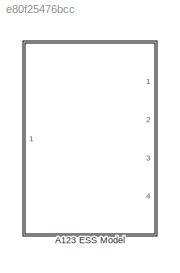
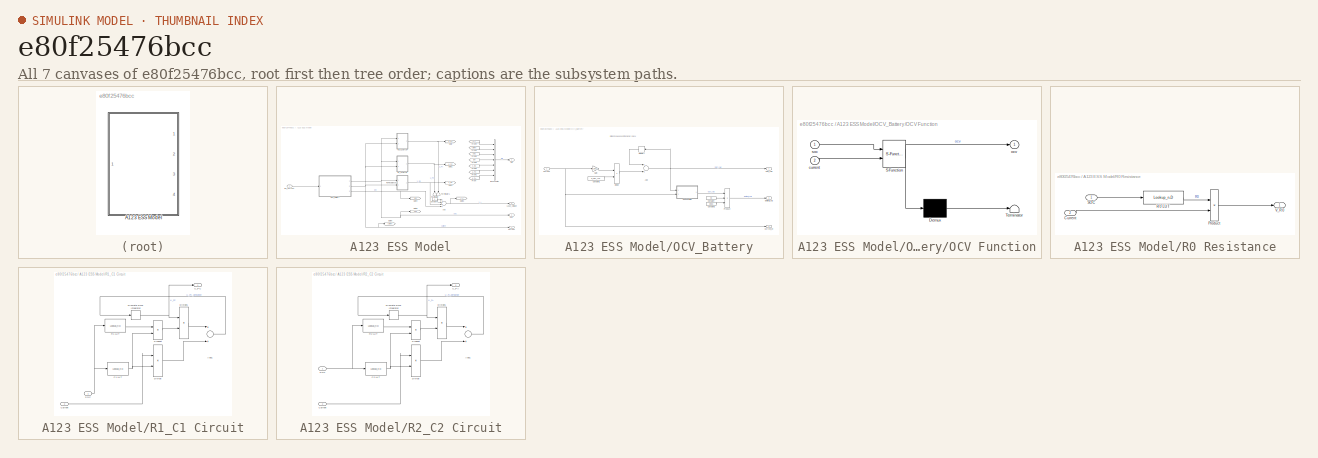
[diagram: thumbnail index - all 7 canvases of the model, root first then tree order]
MODEL slx_e80f25476bcc
KIND library
CONFIG AbsTol = auto
CONFIG EnableMultiTasking = off
CONFIG FixedStep = auto
CONFIG MaxStep = auto
CONFIG MinStep = auto
CONFIG RelTol = 1e-3
CONFIG SampleTimeConstraint = Unconstrained
CONFIG Solver = VariableStepAuto
CONFIG SolverName = VariableStepAuto
CONFIG StartTime = 0.0
CONFIG StopTime = 10.0
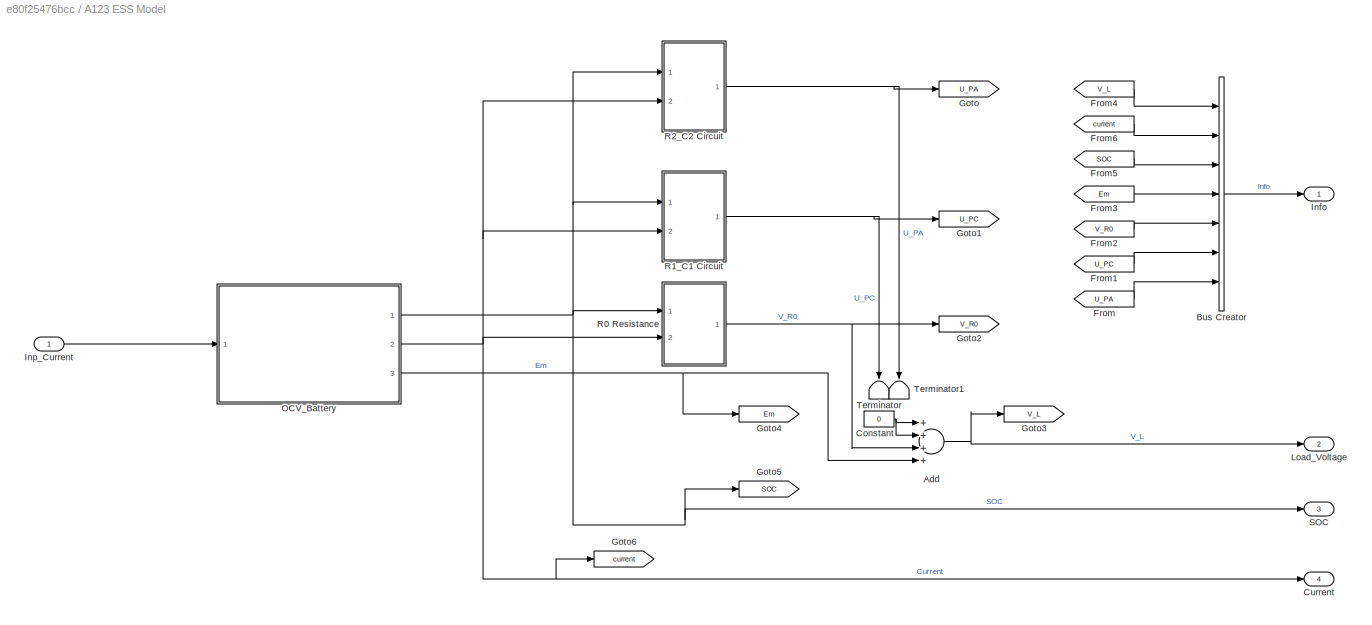
BLOCK [SubSystem] A123 ESS Model
  Ports = [1, 4]
  RequestExecContextInheritance = off
BLOCK [Sum] A123 ESS Model/Add
  InputSameDT = off
  Inputs = ++++
  OutDataTypeStr = Inherit: Inherit via internal rule
  Ports = [4, 1]
  SaturateOnIntegerOverflow = off
BLOCK [BusCreator] A123 ESS Model/Bus Creator
  DisplayOption = bar
  InheritFromInputs = on
  Inputs = 7
  Ports = [7, 1]
BLOCK [Constant] A123 ESS Model/Constant
  Value = 0
BLOCK [Outport] A123 ESS Model/Current
  IconDisplay = Port number
  Port = 4
BLOCK [From] A123 ESS Model/From
  GotoTag = U_PA
BLOCK [From] A123 ESS Model/From1
  GotoTag = U_PC
BLOCK [From] A123 ESS Model/From2
  GotoTag = V_R0
BLOCK [From] A123 ESS Model/From3
  GotoTag = Em
BLOCK [From] A123 ESS Model/From4
  GotoTag = V_L
BLOCK [From] A123 ESS Model/From5
  GotoTag = SOC
BLOCK [From] A123 ESS Model/From6
  GotoTag = current
BLOCK [Goto] A123 ESS Model/Goto
  GotoTag = U_PA
BLOCK [Goto] A123 ESS Model/Goto1
  GotoTag = U_PC
BLOCK [Goto] A123 ESS Model/Goto2
  GotoTag = V_R0
BLOCK [Goto] A123 ESS Model/Goto3
  GotoTag = V_L
BLOCK [Goto] A123 ESS Model/Goto4
  GotoTag = Em
BLOCK [Goto] A123 ESS Model/Goto5
  GotoTag = SOC
BLOCK [Goto] A123 ESS Model/Goto6
  GotoTag = current
BLOCK [Outport] A123 ESS Model/Info
  IconDisplay = Port number
BLOCK [Inport] A123 ESS Model/Inp_Current
  IconDisplay = Port number
BLOCK [Outport] A123 ESS Model/Load_Voltage
  IconDisplay = Port number
  Port = 2
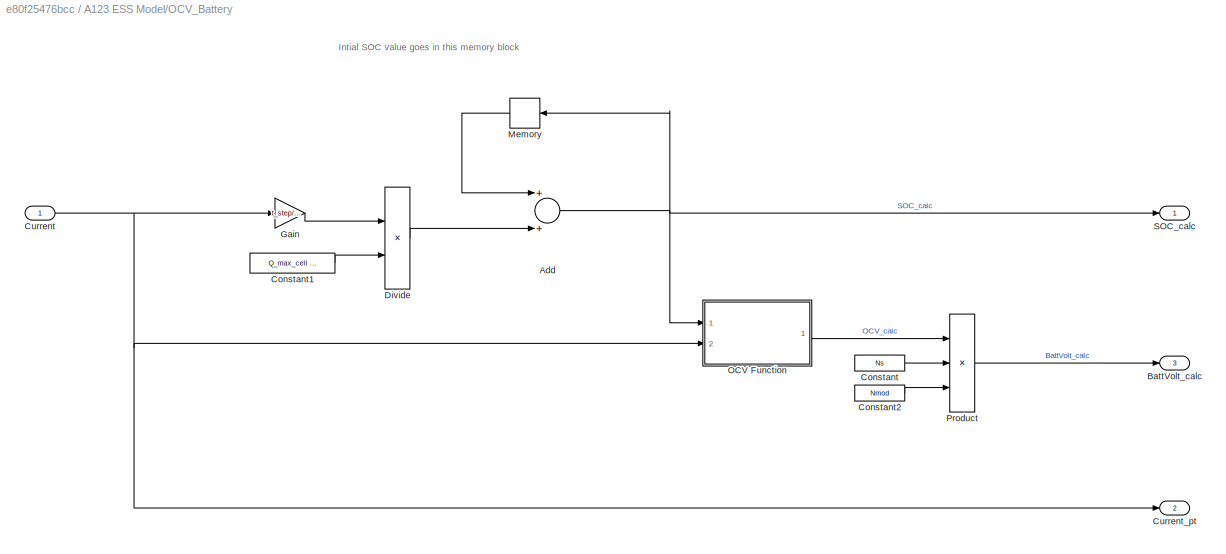
BLOCK [SubSystem] A123 ESS Model/OCV_Battery
  Ports = [1, 3]
  RequestExecContextInheritance = off
BLOCK [Sum] A123 ESS Model/OCV_Battery/Add
  InputSameDT = off
  OutDataTypeStr = Inherit: Inherit via internal rule
  Ports = [2, 1]
  SaturateOnIntegerOverflow = off
BLOCK [Outport] A123 ESS Model/OCV_Battery/BattVolt_calc
  IconDisplay = Port number
  Port = 3
BLOCK [Constant] A123 ESS Model/OCV_Battery/Constant
  Value = Ns
BLOCK [Constant] A123 ESS Model/OCV_Battery/Constant1
  Value = Q_max_cell * Np
BLOCK [Constant] A123 ESS Model/OCV_Battery/Constant2
  Value = Nmod
BLOCK [Inport] A123 ESS Model/OCV_Battery/Current
  IconDisplay = Port number
BLOCK [Outport] A123 ESS Model/OCV_Battery/Current_pt
  IconDisplay = Port number
  Port = 2
BLOCK [Product] A123 ESS Model/OCV_Battery/Divide
  InputSameDT = off
  Inputs = */
  OutDataTypeStr = Inherit: Inherit via internal rule
  Ports = [2, 1]
  RndMeth = Floor
  SaturateOnIntegerOverflow = off
BLOCK [Gain] A123 ESS Model/OCV_Battery/Gain
  Gain = t_step/3600
  OutDataTypeStr = Inherit: Inherit via internal rule
  ParamDataTypeStr = Inherit: Inherit via internal rule
  SaturateOnIntegerOverflow = off
BLOCK [Memory] A123 ESS Model/OCV_Battery/Memory
  InheritSampleTime = on
  InitialCondition = soc_init
  LinearizeAsDelay = on
BLOCK [SubSystem] A123 ESS Model/OCV_Battery/OCV Function
  ErrorFcn = Stateflow.Translate.translate
  PermitHierarchicalResolution = ExplicitOnly
  Ports = [2, 1]
  RequestExecContextInheritance = off
  SFBlockType = MATLAB Function
  TreatAsAtomicUnit = on
BLOCK [Demux] A123 ESS Model/OCV_Battery/OCV Function/ Demux 
  Outputs = 1
  Ports = [1, 1]
BLOCK [S-Function] A123 ESS Model/OCV_Battery/OCV Function/ SFunction 
  EnableBusSupport = off
  FunctionName = sf_sfun
  PortCounts = [2 2]
  Ports = [2, 2]
  SFcnIsStateOwnerBlock = off
  SFunctionDeploymentMode = off
  Tag = Stateflow S-Function lib_ESS 4
BLOCK [Terminator] A123 ESS Model/OCV_Battery/OCV Function/ Terminator 
BLOCK [Inport] A123 ESS Model/OCV_Battery/OCV Function/current
  IconDisplay = Port number
  Port = 2
BLOCK [Outport] A123 ESS Model/OCV_Battery/OCV Function/ocv
  IconDisplay = Port number
BLOCK [Inport] A123 ESS Model/OCV_Battery/OCV Function/soc
  IconDisplay = Port number
BLOCK [Product] A123 ESS Model/OCV_Battery/Product
  InputSameDT = off
  Inputs = 3
  OutDataTypeStr = Inherit: Inherit via internal rule
  Ports = [3, 1]
  RndMeth = Floor
  SaturateOnIntegerOverflow = off
BLOCK [Outport] A123 ESS Model/OCV_Battery/SOC_calc
  IconDisplay = Port number
BLOCK [SubSystem] A123 ESS Model/R0 Resistance
  Ports = [2, 1]
  RequestExecContextInheritance = off
BLOCK [Inport] A123 ESS Model/R0 Resistance/Current
  IconDisplay = Port number
  Port = 2
BLOCK [Product] A123 ESS Model/R0 Resistance/Product
  InputSameDT = off
  OutDataTypeStr = Inherit: Inherit via internal rule
  Ports = [2, 1]
  RndMeth = Floor
  SaturateOnIntegerOverflow = off
BLOCK [Lookup_n-D] A123 ESS Model/R0 Resistance/R0 LUT
  BreakpointsForDimension1 = soc_bpt
  InternalRulePriority = Speed
  NumberOfTableDimensions = 1
  Ports = [1, 1]
  RndMeth = Simplest
  Table = R0
BLOCK [Inport] A123 ESS Model/R0 Resistance/SOC
  IconDisplay = Port number
BLOCK [Outport] A123 ESS Model/R0 Resistance/V_R0
  IconDisplay = Port number
BLOCK [SubSystem] A123 ESS Model/R1_C1 Circuit
  Ports = [2, 1]
  RequestExecContextInheritance = off
BLOCK [Sum] A123 ESS Model/R1_C1 Circuit/Add1
  InputSameDT = off
  OutDataTypeStr = Inherit: Inherit via internal rule
  Ports = [2, 1]
  SaturateOnIntegerOverflow = off
BLOCK [Lookup_n-D] A123 ESS Model/R1_C1 Circuit/C1 LUT
  BreakpointsForDimension1 = soc_bpt
  InternalRulePriority = Speed
  NumberOfTableDimensions = 1
  Ports = [1, 1]
  RndMeth = Simplest
  Table = C1
BLOCK [Inport] A123 ESS Model/R1_C1 Circuit/Current
  IconDisplay = Port number
  Port = 2
BLOCK [DiscreteIntegrator] A123 ESS Model/R1_C1 Circuit/Discrete-Time Integrator
  ICPrevOutput = DiscIntNeverNeededParam
  ICPrevScaledInput = DiscIntNeverNeededParam
  InitialConditionSetting = Auto
  Ports = [1, 1]
  SampleTime = -1
BLOCK [Product] A123 ESS Model/R1_C1 Circuit/Divide
  InputSameDT = off
  Inputs = */
  OutDataTypeStr = Inherit: Inherit via internal rule
  Ports = [2, 1]
  RndMeth = Floor
  SaturateOnIntegerOverflow = off
BLOCK [Product] A123 ESS Model/R1_C1 Circuit/Divide1
  InputSameDT = off
  Inputs = */
  OutDataTypeStr = Inherit: Inherit via internal rule
  Ports = [2, 1]
  RndMeth = Floor
  SaturateOnIntegerOverflow = off
BLOCK [Product] A123 ESS Model/R1_C1 Circuit/Product
  InputSameDT = off
  OutDataTypeStr = Inherit: Inherit via internal rule
  Ports = [2, 1]
  RndMeth = Floor
  SaturateOnIntegerOverflow = off
BLOCK [Lookup_n-D] A123 ESS Model/R1_C1 Circuit/R1 LUT
  BreakpointsForDimension1 = soc_bpt
  InternalRulePriority = Speed
  NumberOfTableDimensions = 1
  Ports = [1, 1]
  RndMeth = Simplest
  Table = R1
BLOCK [Inport] A123 ESS Model/R1_C1 Circuit/SOC
  IconDisplay = Port number
BLOCK [Outport] A123 ESS Model/R1_C1 Circuit/U_PC
  IconDisplay = Port number
BLOCK [SubSystem] A123 ESS Model/R2_C2 Circuit
  Ports = [2, 1]
  RequestExecContextInheritance = off
BLOCK [Sum] A123 ESS Model/R2_C2 Circuit/Add1
  InputSameDT = off
  OutDataTypeStr = Inherit: Inherit via internal rule
  Ports = [2, 1]
  SaturateOnIntegerOverflow = off
BLOCK [Lookup_n-D] A123 ESS Model/R2_C2 Circuit/C2 LUT
  BreakpointsForDimension1 = soc_bpt
  InternalRulePriority = Speed
  NumberOfTableDimensions = 1
  Ports = [1, 1]
  RndMeth = Simplest
  Table = C2
BLOCK [Inport] A123 ESS Model/R2_C2 Circuit/Current
  IconDisplay = Port number
  Port = 2
BLOCK [DiscreteIntegrator] A123 ESS Model/R2_C2 Circuit/Discrete-Time Integrator
  ICPrevOutput = DiscIntNeverNeededParam
  ICPrevScaledInput = DiscIntNeverNeededParam
  InitialConditionSetting = Auto
  Ports = [1, 1]
  SampleTime = -1
BLOCK [Product] A123 ESS Model/R2_C2 Circuit/Divide
  InputSameDT = off
  Inputs = */
  OutDataTypeStr = Inherit: Inherit via internal rule
  Ports = [2, 1]
  RndMeth = Floor
  SaturateOnIntegerOverflow = off
BLOCK [Product] A123 ESS Model/R2_C2 Circuit/Divide1
  InputSameDT = off
  Inputs = */
  OutDataTypeStr = Inherit: Inherit via internal rule
  Ports = [2, 1]
  RndMeth = Floor
  SaturateOnIntegerOverflow = off
BLOCK [Product] A123 ESS Model/R2_C2 Circuit/Product
  InputSameDT = off
  OutDataTypeStr = Inherit: Inherit via internal rule
  Ports = [2, 1]
  RndMeth = Floor
  SaturateOnIntegerOverflow = off
BLOCK [Lookup_n-D] A123 ESS Model/R2_C2 Circuit/R2 LUT
  BreakpointsForDimension1 = soc_bpt
  InternalRulePriority = Speed
  NumberOfTableDimensions = 1
  Ports = [1, 1]
  RndMeth = Simplest
  Table = R2
BLOCK [Inport] A123 ESS Model/R2_C2 Circuit/SOC
  IconDisplay = Port number
BLOCK [Outport] A123 ESS Model/R2_C2 Circuit/U_PA
  IconDisplay = Port number
BLOCK [Outport] A123 ESS Model/SOC
  IconDisplay = Port number
  Port = 3
BLOCK [Terminator] A123 ESS Model/Terminator
BLOCK [Terminator] A123 ESS Model/Terminator1
ANNOTATION A123 ESS Model/OCV_Battery: Intial SOC value goes in this memory block
NET A123 ESS Model/Add:1 -> A123 ESS Model/Goto3:1, A123 ESS Model/Load_Voltage:1
LINE A123 ESS Model/Bus Creator:1 -> A123 ESS Model/Info:1
NET A123 ESS Model/Constant:1 -> A123 ESS Model/Add:1, A123 ESS Model/Add:2
LINE A123 ESS Model/From1:1 -> A123 ESS Model/Bus Creator:6
LINE A123 ESS Model/From2:1 -> A123 ESS Model/Bus Creator:5
LINE A123 ESS Model/From3:1 -> A123 ESS Model/Bus Creator:4
LINE A123 ESS Model/From4:1 -> A123 ESS Model/Bus Creator:1
LINE A123 ESS Model/From5:1 -> A123 ESS Model/Bus Creator:3
LINE A123 ESS Model/From6:1 -> A123 ESS Model/Bus Creator:2
LINE A123 ESS Model/From:1 -> A123 ESS Model/Bus Creator:7
LINE A123 ESS Model/Inp_Current:1 -> A123 ESS Model/OCV_Battery:1
NET A123 ESS Model/OCV_Battery/Add:1 -> A123 ESS Model/OCV_Battery/Memory:1, A123 ESS Model/OCV_Battery/OCV Function:1, A123 ESS Model/OCV_Battery/SOC_calc:1
LINE A123 ESS Model/OCV_Battery/Constant1:1 -> A123 ESS Model/OCV_Battery/Divide:2
LINE A123 ESS Model/OCV_Battery/Constant2:1 -> A123 ESS Model/OCV_Battery/Product:3
LINE A123 ESS Model/OCV_Battery/Constant:1 -> A123 ESS Model/OCV_Battery/Product:2
NET A123 ESS Model/OCV_Battery/Current:1 -> A123 ESS Model/OCV_Battery/Current_pt:1, A123 ESS Model/OCV_Battery/Gain:1, A123 ESS Model/OCV_Battery/OCV Function:2
LINE A123 ESS Model/OCV_Battery/Divide:1 -> A123 ESS Model/OCV_Battery/Add:2
LINE A123 ESS Model/OCV_Battery/Gain:1 -> A123 ESS Model/OCV_Battery/Divide:1
LINE A123 ESS Model/OCV_Battery/Memory:1 -> A123 ESS Model/OCV_Battery/Add:1
LINE A123 ESS Model/OCV_Battery/OCV Function:1 -> A123 ESS Model/OCV_Battery/Product:1
LINE A123 ESS Model/OCV_Battery/Product:1 -> A123 ESS Model/OCV_Battery/BattVolt_calc:1
NET A123 ESS Model/OCV_Battery:1 -> A123 ESS Model/Goto5:1, A123 ESS Model/R0 Resistance:1, A123 ESS Model/R1_C1 Circuit:1, A123 ESS Model/R2_C2 Circuit:1, A123 ESS Model/SOC:1
NET A123 ESS Model/OCV_Battery:2 -> A123 ESS Model/Current:1, A123 ESS Model/Goto6:1, A123 ESS Model/R0 Resistance:2, A123 ESS Model/R1_C1 Circuit:2, A123 ESS Model/R2_C2 Circuit:2
NET A123 ESS Model/OCV_Battery:3 -> A123 ESS Model/Add:4, A123 ESS Model/Goto4:1
LINE A123 ESS Model/R0 Resistance/Current:1 -> A123 ESS Model/R0 Resistance/Product:2
LINE A123 ESS Model/R0 Resistance/Product:1 -> A123 ESS Model/R0 Resistance/V_R0:1
LINE A123 ESS Model/R0 Resistance/R0 LUT:1 -> A123 ESS Model/R0 Resistance/Product:1
LINE A123 ESS Model/R0 Resistance/SOC:1 -> A123 ESS Model/R0 Resistance/R0 LUT:1
NET A123 ESS Model/R0 Resistance:1 -> A123 ESS Model/Add:3, A123 ESS Model/Goto2:1
LINE A123 ESS Model/R1_C1 Circuit/Add1:1 -> A123 ESS Model/R1_C1 Circuit/Discrete-Time Integrator:1
NET A123 ESS Model/R1_C1 Circuit/C1 LUT:1 -> A123 ESS Model/R1_C1 Circuit/Divide:2, A123 ESS Model/R1_C1 Circuit/Product:2
LINE A123 ESS Model/R1_C1 Circuit/Current:1 -> A123 ESS Model/R1_C1 Circuit/Divide:1
NET A123 ESS Model/R1_C1 Circuit/Discrete-Time Integrator:1 -> A123 ESS Model/R1_C1 Circuit/Divide1:1, A123 ESS Model/R1_C1 Circuit/U_PC:1
LINE A123 ESS Model/R1_C1 Circuit/Divide1:1 -> A123 ESS Model/R1_C1 Circuit/Add1:1
LINE A123 ESS Model/R1_C1 Circuit/Divide:1 -> A123 ESS Model/R1_C1 Circuit/Add1:2
LINE A123 ESS Model/R1_C1 Circuit/Product:1 -> A123 ESS Model/R1_C1 Circuit/Divide1:2
LINE A123 ESS Model/R1_C1 Circuit/R1 LUT:1 -> A123 ESS Model/R1_C1 Circuit/Product:1
NET A123 ESS Model/R1_C1 Circuit/SOC:1 -> A123 ESS Model/R1_C1 Circuit/C1 LUT:1, A123 ESS Model/R1_C1 Circuit/R1 LUT:1
NET A123 ESS Model/R1_C1 Circuit:1 -> A123 ESS Model/Goto1:1, A123 ESS Model/Terminator:1
LINE A123 ESS Model/R2_C2 Circuit/Add1:1 -> A123 ESS Model/R2_C2 Circuit/Discrete-Time Integrator:1
NET A123 ESS Model/R2_C2 Circuit/C2 LUT:1 -> A123 ESS Model/R2_C2 Circuit/Divide:2, A123 ESS Model/R2_C2 Circuit/Product:2
LINE A123 ESS Model/R2_C2 Circuit/Current:1 -> A123 ESS Model/R2_C2 Circuit/Divide:1
NET A123 ESS Model/R2_C2 Circuit/Discrete-Time Integrator:1 -> A123 ESS Model/R2_C2 Circuit/Divide1:1, A123 ESS Model/R2_C2 Circuit/U_PA:1
LINE A123 ESS Model/R2_C2 Circuit/Divide1:1 -> A123 ESS Model/R2_C2 Circuit/Add1:1
LINE A123 ESS Model/R2_C2 Circuit/Divide:1 -> A123 ESS Model/R2_C2 Circuit/Add1:2
LINE A123 ESS Model/R2_C2 Circuit/Product:1 -> A123 ESS Model/R2_C2 Circuit/Divide1:2
LINE A123 ESS Model/R2_C2 Circuit/R2 LUT:1 -> A123 ESS Model/R2_C2 Circuit/Product:1
NET A123 ESS Model/R2_C2 Circuit/SOC:1 -> A123 ESS Model/R2_C2 Circuit/C2 LUT:1, A123 ESS Model/R2_C2 Circuit/R2 LUT:1
NET A123 ESS Model/R2_C2 Circuit:1 -> A123 ESS Model/Goto:1, A123 ESS Model/Terminator1:1
note: NET lines group one-source signal fan-out (src -> all destinations, sorted); 1:1 wires keep LINE
CHART A123 ESS Model/OCV_Battery/OCV Function states=1 transitions=1
  STATE_LABEL 'eML_blk_kernel()'
  STATE_LABEL 'SCRIPT:\nfunction ocv = fcn(soc, current)\n\nif current < 0\n    %% 0-20 Model Fit\n    if (soc <= 0.2)\n        ocv = 3.17*exp(0.1*soc) - 2.76*exp(-65.25*soc);\n    %% 20-80 Model Fit\n    elseif (soc > 0.2 && soc <= 0.8)\n        ocv = 0.165*soc + 3.20;\n    %% 80-100 Model Fit\n    else\n        ocv = 0.2*(soc^74.2) + 3.33;\n    end\nelse\n    %% 0-20 Model Fit\n    if (soc <= 0.2)\n        ocv = 3.19*exp(0.098...<+212ch>'
